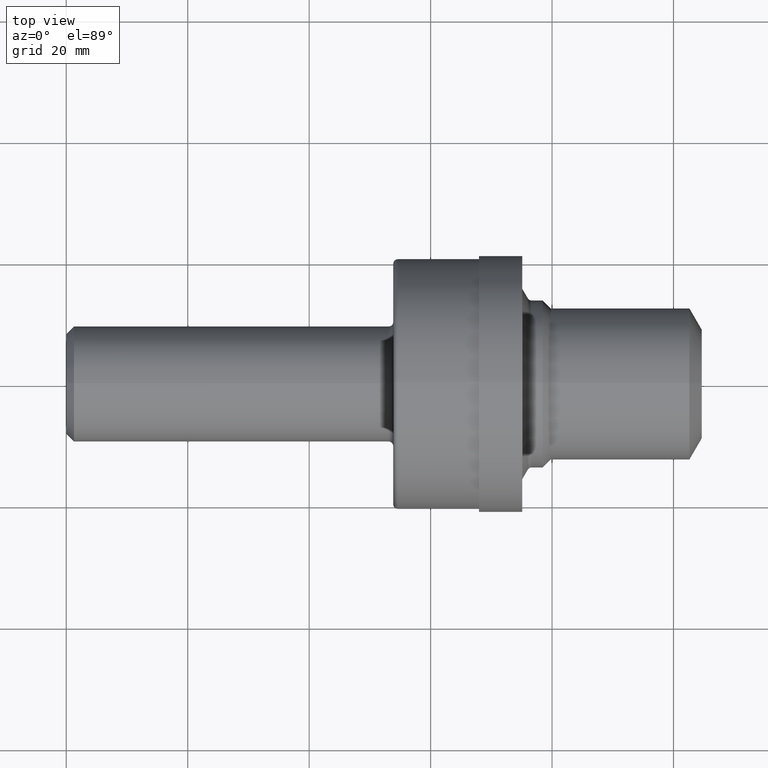
[diagram: clean part render]
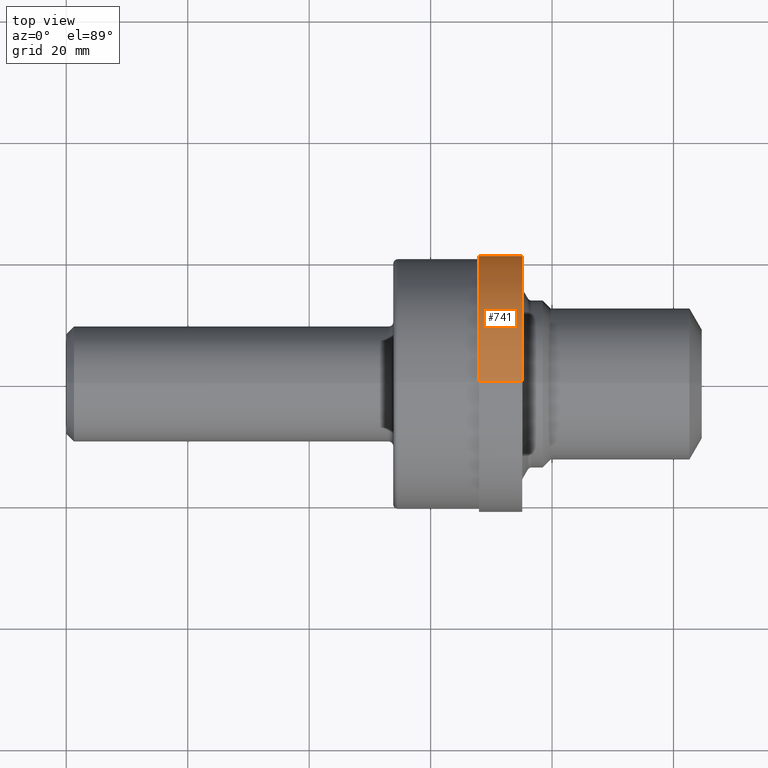
[diagram: same view with one face highlighted and labeled with its STEP entity id]
A machine part, top view. The second image highlights one B-rep face of the part: STEP entity #741.
In plain terms, the highlighted cylindrical surface (partial cylindrical patch) has radius 21.1455 mm, axis along (-1, -0, -0).
Its self-contained STEP definition (entity closure, byte-faithful):
#60 = ORIENTED_EDGE ( 'NONE', *, *, #100, .F. ) ;
#75 = CARTESIAN_POINT ( 'NONE',  ( 2.676000000000000600, 0.000000000000000000, 0.000000000000000000 ) ) ;
#78 = LINE ( 'NONE', #648, #152 ) ;
#100 = EDGE_CURVE ( 'NONE', #297, #731, #565, .T. ) ;
#119 = CIRCLE ( 'NONE', #385, 0.8325000000000000178 ) ;
#122 = EDGE_LOOP ( 'NONE', ( #550, #424, #60, #533 ) ) ;
#137 = CARTESIAN_POINT ( 'NONE',  ( 2.676000000000000600, 1.019518460290171568E-16, -0.8325000000000000178 ) ) ;
#140 = DIRECTION ( 'NONE',  ( 0.000000000000000000, 0.000000000000000000, 1.000000000000000000 ) ) ;
#151 = AXIS2_PLACEMENT_3D ( 'NONE', #75, #584, #140 ) ;
#152 = VECTOR ( 'NONE', #587, 39.37007874015748143 ) ;
#202 = FACE_OUTER_BOUND ( 'NONE', #122, .T. ) ;
#218 = CYLINDRICAL_SURFACE ( 'NONE', #310, 0.8325000000000000178 ) ;
#249 = CARTESIAN_POINT ( 'NONE',  ( 0.000000000000000000, 1.019518460290171568E-16, -0.8325000000000000178 ) ) ;
#297 = VERTEX_POINT ( 'NONE', #314 ) ;
#310 = AXIS2_PLACEMENT_3D ( 'NONE', #789, #538, #601 ) ;
#314 = CARTESIAN_POINT ( 'NONE',  ( 2.676000000000000600, 0.000000000000000000, 0.8325000000000000178 ) ) ;
#359 = EDGE_CURVE ( 'NONE', #809, #793, #119, .T. ) ;
#385 = AXIS2_PLACEMENT_3D ( 'NONE', #708, #517, #394 ) ;
#394 = DIRECTION ( 'NONE',  ( 0.000000000000000000, 0.000000000000000000, 1.000000000000000000 ) ) ;
#406 = EDGE_CURVE ( 'NONE', #809, #297, #78, .T. ) ;
#407 = CARTESIAN_POINT ( 'NONE',  ( 2.955999999999999961, 1.019518460290171568E-16, -0.8325000000000000178 ) ) ;
#424 = ORIENTED_EDGE ( 'NONE', *, *, #537, .T. ) ;
#437 = LINE ( 'NONE', #249, #760 ) ;
#517 = DIRECTION ( 'NONE',  ( -1.000000000000000000, -0.000000000000000000, -0.000000000000000000 ) ) ;
#533 = ORIENTED_EDGE ( 'NONE', *, *, #406, .F. ) ;
#537 = EDGE_CURVE ( 'NONE', #793, #731, #437, .T. ) ;
#538 = DIRECTION ( 'NONE',  ( -1.000000000000000000, -0.000000000000000000, -0.000000000000000000 ) ) ;
#550 = ORIENTED_EDGE ( 'NONE', *, *, #359, .T. ) ;
#565 = CIRCLE ( 'NONE', #151, 0.8325000000000000178 ) ;
#584 = DIRECTION ( 'NONE',  ( -1.000000000000000000, -0.000000000000000000, -0.000000000000000000 ) ) ;
#587 = DIRECTION ( 'NONE',  ( -1.000000000000000000, -0.000000000000000000, -0.000000000000000000 ) ) ;
#601 = DIRECTION ( 'NONE',  ( 0.000000000000000000, 0.000000000000000000, 1.000000000000000000 ) ) ;
#648 = CARTESIAN_POINT ( 'NONE',  ( 0.000000000000000000, 0.000000000000000000, 0.8325000000000000178 ) ) ;
#699 = CARTESIAN_POINT ( 'NONE',  ( 2.955999999999999961, 0.000000000000000000, 0.8325000000000000178 ) ) ;
#708 = CARTESIAN_POINT ( 'NONE',  ( 2.955999999999999961, 0.000000000000000000, 0.000000000000000000 ) ) ;
#731 = VERTEX_POINT ( 'NONE', #137 ) ;
#741 = ADVANCED_FACE ( 'NONE', ( #202 ), #218, .T. ) ;
#749 = DIRECTION ( 'NONE',  ( -1.000000000000000000, -0.000000000000000000, -0.000000000000000000 ) ) ;
#760 = VECTOR ( 'NONE', #749, 39.37007874015748143 ) ;
#789 = CARTESIAN_POINT ( 'NONE',  ( 0.000000000000000000, 0.000000000000000000, 0.000000000000000000 ) ) ;
#793 = VERTEX_POINT ( 'NONE', #407 ) ;
#809 = VERTEX_POINT ( 'NONE', #699 ) ;